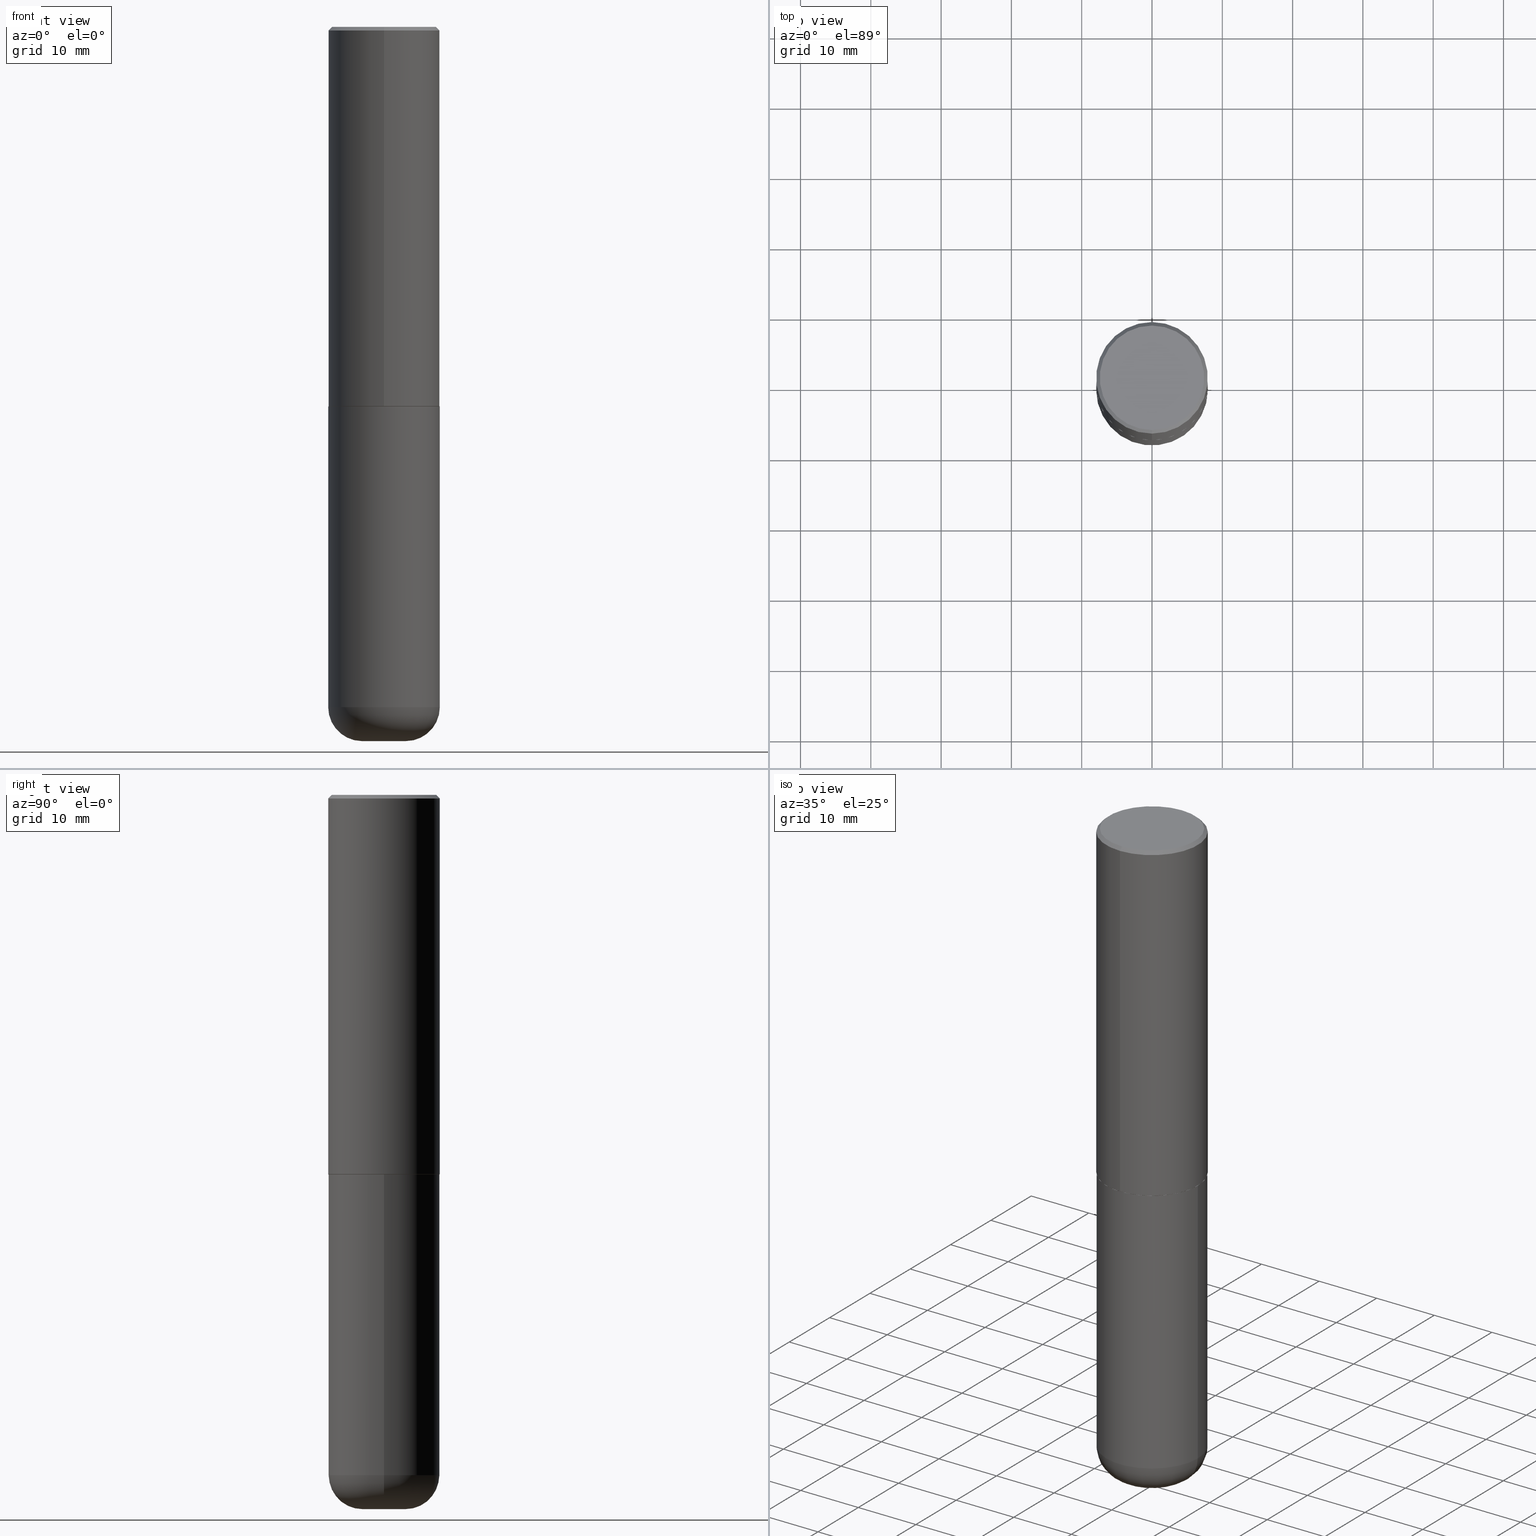
[diagram: canonical four-view strip — front | top / right | iso, engineering-drawing reading convention]
A machine part, canonical four-view strip (front | top / right | iso — engineering-drawing reading convention). The complete STEP part file that produces these views, byte-faithful:
ISO-10303-21;
HEADER;
FILE_DESCRIPTION (( 'STEP AP203' ),
    '1' );
FILE_NAME ('37624.STEP',
    '2024-03-02T06:19:45',
    ( '' ),
    ( '' ),
    'SwSTEP 2.0',
    'SolidWorks 2023',
    '' );
FILE_SCHEMA (( 'CONFIG_CONTROL_DESIGN' ));
ENDSEC;

DATA;
#1 = LINE ( 'NONE', #327, #83 ) ;
#2 = EDGE_CURVE ( 'NONE', #383, #173, #401, .T. ) ;
#3 = CARTESIAN_POINT ( 'NONE',  ( 5.192866564986985411E-29, -7.417781183046251262E-15, -2.123999999999999666 ) ) ;
#4 = AXIS2_PLACEMENT_3D ( 'NONE', #358, #258, #253 ) ;
#5 = EDGE_CURVE ( 'NONE', #287, #154, #342, .T. ) ;
#6 = DIRECTION ( 'NONE',  ( -1.000000000000000000, 6.982962677686265922E-15, -4.876176775795935793E-29 ) ) ;
#7 = PERSON_AND_ORGANIZATION ( #264, #325 ) ;
#8 = APPROVAL ( #201, 'UNSPECIFIED' ) ;
#9 = DIRECTION ( 'NONE',  ( -6.982962677686265133E-15, -1.000000000000000000, 3.492364022149836358E-15 ) ) ;
#10 = DIRECTION ( 'NONE',  ( 0.000000000000000000, 0.000000000000000000, 1.000000000000000000 ) ) ;
#11 = DIRECTION ( 'NONE',  ( 1.000000000000000000, -6.982962677686263555E-15, 0.000000000000000000 ) ) ;
#12 = AXIS2_PLACEMENT_3D ( 'NONE', #131, #261, #390 ) ;
#13 = CIRCLE ( 'NONE', #105, 0.3125000000000000000 ) ;
#14 = EDGE_CURVE ( 'NONE', #195, #68, #1, .T. ) ;
#15 = ORIENTED_EDGE ( 'NONE', *, *, #380, .F. ) ;
#16 = CALENDAR_DATE ( 2024, 2, 3 ) ;
#17 = ORIENTED_EDGE ( 'NONE', *, *, #112, .F. ) ;
#18 = ORIENTED_EDGE ( 'NONE', *, *, #225, .F. ) ;
#19 = COORDINATED_UNIVERSAL_TIME_OFFSET ( 5, 0, .BEHIND. ) ;
#20 = CARTESIAN_POINT ( 'NONE',  ( -2.143905624303602824E-15, -0.3125000000000000555, -0.01999999999999897693 ) ) ;
#21 = DATE_AND_TIME ( #16, #402 ) ;
#22 = DIRECTION ( 'NONE',  ( 2.444852431726452894E-29, -3.492364022149836358E-15, -1.000000000000000000 ) ) ;
#23 = DIRECTION ( 'NONE',  ( -2.444852431726452333E-29, 3.492364022149836358E-15, 1.000000000000000000 ) ) ;
#24 = ORIENTED_EDGE ( 'NONE', *, *, #168, .F. ) ;
#25 = DESIGN_CONTEXT ( 'detailed design', #318, 'design' ) ;
#26 = DIRECTION ( 'NONE',  ( 2.438088387897960049E-29, -3.491481338843145188E-15, -1.000000000000000000 ) ) ;
#27 = DIRECTION ( 'NONE',  ( -2.445468806185136597E-29, 3.491481338843145583E-15, 1.000000000000000000 ) ) ;
#28 = CIRCLE ( 'NONE', #12, 0.2924999999999999822 ) ;
#29 = VERTEX_POINT ( 'NONE', #70 ) ;
#30 = DIRECTION ( 'NONE',  ( 1.000000000000000000, -6.982962677686269077E-15, 0.000000000000000000 ) ) ;
#31 = CC_DESIGN_PERSON_AND_ORGANIZATION_ASSIGNMENT ( #136, #71, ( #177 ) ) ;
#32 = ORIENTED_EDGE ( 'NONE', *, *, #380, .T. ) ;
#33 = ORIENTED_EDGE ( 'NONE', *, *, #302, .F. ) ;
#34 = ORIENTED_EDGE ( 'NONE', *, *, #2, .T. ) ;
#35 = CLOSED_SHELL ( 'NONE', ( #240, #221, #330, #306, #246, #194, #184, #400 ) ) ;
#36 = VECTOR ( 'NONE', #90, 39.37007874015748143 ) ;
#37 = APPLICATION_CONTEXT ( 'configuration controlled 3d designs of mechanical parts and assemblies' ) ;
#38 = DIRECTION ( 'NONE',  ( -6.982962677686265922E-15, -1.000000000000000000, 3.507991003100177457E-15 ) ) ;
#39 = FACE_OUTER_BOUND ( 'NONE', #64, .T. ) ;
#40 = SECURITY_CLASSIFICATION_LEVEL ( 'unclassified' ) ;
#41 = CIRCLE ( 'NONE', #275, 0.3125000000000000000 ) ;
#42 = LOCAL_TIME ( 1, 19, 45.00000000000000000, #140 ) ;
#43 = DATE_AND_TIME ( #207, #234 ) ;
#44 = DIRECTION ( 'NONE',  ( 4.937700262164541731E-15, 0.7071067811865442421, -0.7071067811865507924 ) ) ;
#45 = FACE_OUTER_BOUND ( 'NONE', #223, .T. ) ;
#46 = PERSON_AND_ORGANIZATION ( #264, #325 ) ;
#47 = VECTOR ( 'NONE', #158, 39.37007874015748143 ) ;
#48 = PLANE ( 'NONE',  #353 ) ;
#49 = EDGE_LOOP ( 'NONE', ( #294, #110 ) ) ;
#50 = DATE_TIME_ROLE ( 'classification_date' ) ;
#51 = DIRECTION ( 'NONE',  ( 6.982962677686265133E-15, 1.000000000000000000, -3.496765431890256920E-15 ) ) ;
#52 = VECTOR ( 'NONE', #146, 39.37007874015748143 ) ;
#53 = CONICAL_SURFACE ( 'NONE', #244, 0.3125000000000000000, 0.7853981633974471688 ) ;
#54 = ORIENTED_EDGE ( 'NONE', *, *, #348, .F. ) ;
#55 = PERSON_AND_ORGANIZATION ( #264, #325 ) ;
#56 = CARTESIAN_POINT ( 'NONE',  ( 4.889704863452922148E-31, -6.984728044299695791E-17, -0.02000000000000006981 ) ) ;
#57 = PLANE ( 'NONE',  #303 ) ;
#58 = DIRECTION ( 'NONE',  ( -2.445468806185136597E-29, 3.491481338843145583E-15, 1.000000000000000000 ) ) ;
#59 = APPROVAL_DATE_TIME ( #150, #87 ) ;
#60 = EDGE_CURVE ( 'NONE', #394, #68, #362, .T. ) ;
#61 = DIRECTION ( 'NONE',  ( 1.000000000000000000, -6.982962677686266711E-15, 4.876176775795936353E-29 ) ) ;
#62 = AXIS2_PLACEMENT_3D ( 'NONE', #3, #285, #408 ) ;
#63 = CIRCLE ( 'NONE', #128, 0.3125000000000000000 ) ;
#64 = EDGE_LOOP ( 'NONE', ( #65, #274, #15, #247 ) ) ;
#65 = ORIENTED_EDGE ( 'NONE', *, *, #134, .T. ) ;
#66 = DIRECTION ( 'NONE',  ( -6.982962677686265133E-15, -1.000000000000000000, 3.496765431890256920E-15 ) ) ;
#67 = EDGE_CURVE ( 'NONE', #29, #96, #266, .T. ) ;
#68 = VERTEX_POINT ( 'NONE', #20 ) ;
#69 = CARTESIAN_POINT ( 'NONE',  ( 2.220446049250340297E-15, 0.3124999999999928391, -2.124000000000000554 ) ) ;
#70 = CARTESIAN_POINT ( 'NONE',  ( 0.1225000000000000394, -1.482133828338914748E-14, -3.999999999999999556 ) ) ;
#71 = PERSON_AND_ORGANIZATION_ROLE ( 'design_owner' ) ;
#72 = DIRECTION ( 'NONE',  ( -2.444852431726452894E-29, 3.492364022149836358E-15, 1.000000000000000000 ) ) ;
#73 = DIRECTION ( 'NONE',  ( -2.445468806185136597E-29, 3.491481338843145583E-15, 1.000000000000000000 ) ) ;
#74 = EDGE_LOOP ( 'NONE', ( #257, #210, #307, #54 ) ) ;
#75 = PERSON_AND_ORGANIZATION ( #264, #325 ) ;
#76 = AXIS2_PLACEMENT_3D ( 'NONE', #230, #345, #163 ) ;
#77 = CALENDAR_DATE ( 2024, 2, 3 ) ;
#78 = DIRECTION ( 'NONE',  ( -6.982962677686265922E-15, -1.000000000000000000, 3.507991003100177457E-15 ) ) ;
#79 = ORIENTED_EDGE ( 'NONE', *, *, #14, .T. ) ;
#80 = ADVANCED_FACE ( 'NONE', ( #316 ), #295, .T. ) ;
#81 = ORIENTED_EDGE ( 'NONE', *, *, #102, .F. ) ;
#82 = CARTESIAN_POINT ( 'NONE',  ( 0.3125000000000000000, -9.601573681818640393E-15, -2.124999999999999556 ) ) ;
#83 = VECTOR ( 'NONE', #149, 39.37007874015748143 ) ;
#84 = EDGE_CURVE ( 'NONE', #195, #404, #256, .T. ) ;
#85 = MANIFOLD_SOLID_BREP ( 'Body-Move/Copy2[1]', #333 ) ;
#86 = ORIENTED_EDGE ( 'NONE', *, *, #2, .F. ) ;
#87 = APPROVAL ( #179, 'UNSPECIFIED' ) ;
#88 = AXIS2_PLACEMENT_3D ( 'NONE', #217, #319, #187 ) ;
#89 = LINE ( 'NONE', #181, #47 ) ;
#90 = DIRECTION ( 'NONE',  ( -4.937700262165053702E-15, -0.7071067811866175168, 0.7071067811864775177 ) ) ;
#91 = CARTESIAN_POINT ( 'NONE',  ( -0.1225000000000000394, -1.208880417790426594E-14, -3.999999999999999556 ) ) ;
#92 = ORIENTED_EDGE ( 'NONE', *, *, #152, .F. ) ;
#93 = DIRECTION ( 'NONE',  ( 7.105427357601001859E-15, 1.000000000000000000, -3.491481338843145583E-15 ) ) ;
#94 = CIRCLE ( 'NONE', #418, 0.3114999999999999991 ) ;
#95 =( GEOMETRIC_REPRESENTATION_CONTEXT ( 3 ) GLOBAL_UNCERTAINTY_ASSIGNED_CONTEXT ( ( #241 ) ) GLOBAL_UNIT_ASSIGNED_CONTEXT ( ( #321, #126, #160 ) ) REPRESENTATION_CONTEXT ( 'NONE', 'WORKASPACE' ) );
#96 = VERTEX_POINT ( 'NONE', #91 ) ;
#97 = CARTESIAN_POINT ( 'NONE',  ( 2.042516583223232540E-15, 0.2924999999999999822, -1.017118871555123169E-15 ) ) ;
#98 = CARTESIAN_POINT ( 'NONE',  ( -0.3124999999999998890, -1.108209785174207265E-14, -3.810000000000000053 ) ) ;
#99 = DIRECTION ( 'NONE',  ( -2.444852431726452894E-29, 3.492364022149836358E-15, 1.000000000000000000 ) ) ;
#100 = CIRCLE ( 'NONE', #297, 0.1225000000000000394 ) ;
#101 = FACE_OUTER_BOUND ( 'NONE', #162, .T. ) ;
#102 = EDGE_CURVE ( 'NONE', #383, #154, #405, .T. ) ;
#103 = CARTESIAN_POINT ( 'NONE',  ( 5.195311417418712329E-29, -7.421273547068401324E-15, -2.124999999999999556 ) ) ;
#104 = DIRECTION ( 'NONE',  ( 2.438088387897960049E-29, -3.491481338843145188E-15, -1.000000000000000000 ) ) ;
#105 = AXIS2_PLACEMENT_3D ( 'NONE', #289, #288, #415 ) ;
#106 = CARTESIAN_POINT ( 'NONE',  ( 0.000000000000000000, 0.000000000000000000, 0.000000000000000000 ) ) ;
#107 = EDGE_CURVE ( 'NONE', #96, #383, #233, .T. ) ;
#108 = COORDINATED_UNIVERSAL_TIME_OFFSET ( 5, 0, .BEHIND. ) ;
#109 = CARTESIAN_POINT ( 'NONE',  ( 0.000000000000000000, 0.000000000000000000, 0.000000000000000000 ) ) ;
#110 = ORIENTED_EDGE ( 'NONE', *, *, #84, .T. ) ;
#111 = AXIS2_PLACEMENT_3D ( 'NONE', #236, #369, #78 ) ;
#112 = EDGE_CURVE ( 'NONE', #411, #394, #171, .T. ) ;
#113 = PRODUCT_DEFINITION_FORMATION_WITH_SPECIFIED_SOURCE ( 'ANY', '', #177, .NOT_KNOWN. ) ;
#114 = COORDINATED_UNIVERSAL_TIME_OFFSET ( 5, 0, .BEHIND. ) ;
#115 = FACE_OUTER_BOUND ( 'NONE', #403, .T. ) ;
#116 = ORIENTED_EDGE ( 'NONE', *, *, #107, .F. ) ;
#117 = CYLINDRICAL_SURFACE ( 'NONE', #309, 0.3125000000000000000 ) ;
#118 = ORIENTED_EDGE ( 'NONE', *, *, #290, .T. ) ;
#119 = DIRECTION ( 'NONE',  ( 2.444852431726452894E-29, -3.492364022149836358E-15, -1.000000000000000000 ) ) ;
#120 = VECTOR ( 'NONE', #44, 39.37007874015748143 ) ;
#121 = DIRECTION ( 'NONE',  ( -2.445468806185136597E-29, 3.491481338843145583E-15, 1.000000000000000000 ) ) ;
#122 = ADVANCED_FACE ( 'NONE', ( #413 ), #117, .T. ) ;
#123 = ORIENTED_EDGE ( 'NONE', *, *, #112, .T. ) ;
#124 = DIRECTION ( 'NONE',  ( -2.445468806185136877E-29, 3.491481338843145188E-15, 1.000000000000000000 ) ) ;
#125 = EDGE_LOOP ( 'NONE', ( #278, #382, #196, #33 ) ) ;
#126 =( NAMED_UNIT ( * ) PLANE_ANGLE_UNIT ( ) SI_UNIT ( $, .RADIAN. ) );
#127 = AXIS2_PLACEMENT_3D ( 'NONE', #129, #99, #219 ) ;
#128 = AXIS2_PLACEMENT_3D ( 'NONE', #161, #292, #66 ) ;
#129 = CARTESIAN_POINT ( 'NONE',  ( 5.192866564986985411E-29, -7.417781183046251262E-15, -2.123999999999999666 ) ) ;
#130 = APPROVAL_ROLE ( '' ) ;
#131 = CARTESIAN_POINT ( 'NONE',  ( -2.150299018297948745E-46, 3.071607443834507134E-32, 8.795209847407834549E-18 ) ) ;
#132 = TOROIDAL_SURFACE ( 'NONE', #180, 0.1225000000000000255, 0.1899999999999996692 ) ;
#133 = CONICAL_SURFACE ( 'NONE', #190, 0.3114999999999999991, 0.7853981633975507526 ) ;
#134 = EDGE_CURVE ( 'NONE', #394, #411, #242, .T. ) ;
#135 = DIRECTION ( 'NONE',  ( -2.445468806185136597E-29, 3.491481338843145583E-15, 1.000000000000000000 ) ) ;
#136 = PERSON_AND_ORGANIZATION ( #264, #325 ) ;
#137 = DIRECTION ( 'NONE',  ( -6.982962677686265922E-15, -1.000000000000000000, 3.507991003100177457E-15 ) ) ;
#138 = EDGE_CURVE ( 'NONE', #173, #383, #141, .T. ) ;
#139 = PRODUCT_DEFINITION_SHAPE ( 'NONE', 'NONE',  #376 ) ;
#140 = COORDINATED_UNIVERSAL_TIME_OFFSET ( 5, 0, .BEHIND. ) ;
#141 = CIRCLE ( 'NONE', #379, 0.3125000000000000000 ) ;
#142 = PRODUCT_RELATED_PRODUCT_CATEGORY ( 'detail', '', ( #177 ) ) ;
#143 = CARTESIAN_POINT ( 'NONE',  ( 9.317236151565370389E-29, -1.330254390099238573E-14, -3.810000000000000053 ) ) ;
#144 = CARTESIAN_POINT ( 'NONE',  ( 5.195311417418712329E-29, -7.421273547068401324E-15, -2.124999999999999556 ) ) ;
#145 = CC_DESIGN_PERSON_AND_ORGANIZATION_ASSIGNMENT ( #202, #331, ( #113 ) ) ;
#146 = DIRECTION ( 'NONE',  ( -2.445468806185136877E-29, 3.491481338843145188E-15, 1.000000000000000000 ) ) ;
#147 = ORIENTED_EDGE ( 'NONE', *, *, #14, .F. ) ;
#148 = CALENDAR_DATE ( 2024, 2, 3 ) ;
#149 = DIRECTION ( 'NONE',  ( -4.851104656540957964E-15, -0.7071067811865491270, -0.7071067811865459074 ) ) ;
#150 = DATE_AND_TIME ( #148, #276 ) ;
#151 = LINE ( 'NONE', #250, #36 ) ;
#152 = EDGE_CURVE ( 'NONE', #414, #411, #89, .T. ) ;
#153 = DIRECTION ( 'NONE',  ( -6.982962677686265922E-15, -1.000000000000000000, 3.492364022149836358E-15 ) ) ;
#154 = VERTEX_POINT ( 'NONE', #293 ) ;
#155 = AXIS2_PLACEMENT_3D ( 'NONE', #332, #104, #6 ) ;
#156 = DIRECTION ( 'NONE',  ( -1.000000000000000000, 7.105427357600997914E-15, 0.000000000000000000 ) ) ;
#157 = DIRECTION ( 'NONE',  ( -6.982962677686266711E-15, -1.000000000000000000, 3.491481338843145583E-15 ) ) ;
#158 = DIRECTION ( 'NONE',  ( 5.024295867788576727E-15, 0.7071067811866224018, 0.7071067811864726327 ) ) ;
#159 = ORIENTED_EDGE ( 'NONE', *, *, #84, .F. ) ;
#160 =( NAMED_UNIT ( * ) SI_UNIT ( $, .STERADIAN. ) SOLID_ANGLE_UNIT ( ) );
#161 = CARTESIAN_POINT ( 'NONE',  ( 4.889704863452922148E-31, -6.984728044299695791E-17, -0.02000000000000006981 ) ) ;
#162 = EDGE_LOOP ( 'NONE', ( #417, #341 ) ) ;
#163 = DIRECTION ( 'NONE',  ( -6.982962677686265133E-15, -1.000000000000000000, 3.492364022149836753E-15 ) ) ;
#164 = EDGE_CURVE ( 'NONE', #186, #414, #385, .T. ) ;
#165 = DIRECTION ( 'NONE',  ( -2.444852431726452894E-29, 3.492364022149836358E-15, 1.000000000000000000 ) ) ;
#166 = APPROVAL_PERSON_ORGANIZATION ( #175, #87, #311 ) ;
#167 = APPROVAL_DATE_TIME ( #43, #298 ) ;
#168 = EDGE_CURVE ( 'NONE', #404, #195, #28, .T. ) ;
#169 = FACE_OUTER_BOUND ( 'NONE', #74, .T. ) ;
#170 = LINE ( 'NONE', #270, #373 ) ;
#171 = CIRCLE ( 'NONE', #62, 0.3125000000000002776 ) ;
#172 = CONICAL_SURFACE ( 'NONE', #291, 0.3125000000000000000, 0.7853981633974471688 ) ;
#173 = VERTEX_POINT ( 'NONE', #252 ) ;
#174 = LINE ( 'NONE', #308, #52 ) ;
#175 = PERSON_AND_ORGANIZATION ( #264, #325 ) ;
#176 = DIRECTION ( 'NONE',  ( -6.982962677686265133E-15, -1.000000000000000000, 3.496765431890256920E-15 ) ) ;
#177 = PRODUCT ( '37624', '37624', '', ( #231 ) ) ;
#178 = ORIENTED_EDGE ( 'NONE', *, *, #5, .T. ) ;
#179 = APPROVAL_STATUS ( 'not_yet_approved' ) ;
#180 = AXIS2_PLACEMENT_3D ( 'NONE', #143, #338, #305 ) ;
#181 = CARTESIAN_POINT ( 'NONE',  ( 2.213340621892763743E-15, 0.3114999999999925606, -2.125000000000000888 ) ) ;
#182 = ORIENTED_EDGE ( 'NONE', *, *, #361, .F. ) ;
#183 = DIRECTION ( 'NONE',  ( -2.444852431726452894E-29, 3.492364022149836358E-15, 1.000000000000000000 ) ) ;
#184 = ADVANCED_FACE ( 'NONE', ( #101 ), #57, .F. ) ;
#185 = CARTESIAN_POINT ( 'NONE',  ( -0.3125000000000000000, 2.220446049250313081E-15, -1.537167215704658232E-29 ) ) ;
#186 = VERTEX_POINT ( 'NONE', #282 ) ;
#187 = DIRECTION ( 'NONE',  ( 1.000000000000000000, -6.982962677686263555E-15, 0.000000000000000000 ) ) ;
#188 = ORIENTED_EDGE ( 'NONE', *, *, #361, .T. ) ;
#189 = DIRECTION ( 'NONE',  ( 1.000000000000000000, -6.982962677686261189E-15, 0.000000000000000000 ) ) ;
#190 = AXIS2_PLACEMENT_3D ( 'NONE', #103, #165, #137 ) ;
#191 = SECURITY_CLASSIFICATION ( '', '', #40 ) ;
#192 = CARTESIAN_POINT ( 'NONE',  ( 9.317236151565370389E-29, -1.330254390099238573E-14, -3.810000000000000053 ) ) ;
#193 = CIRCLE ( 'NONE', #412, 0.1899999999999997247 ) ;
#194 = ADVANCED_FACE ( 'NONE', ( #301 ), #133, .T. ) ;
#195 = VERTEX_POINT ( 'NONE', #203 ) ;
#196 = ORIENTED_EDGE ( 'NONE', *, *, #5, .F. ) ;
#197 = AXIS2_PLACEMENT_3D ( 'NONE', #248, #93, #156 ) ;
#198 = CARTESIAN_POINT ( 'NONE',  ( 2.216893335571564642E-15, 0.3114999999999925606, -2.125000000000000888 ) ) ;
#199 = EDGE_CURVE ( 'NONE', #96, #29, #100, .T. ) ;
#200 = DIRECTION ( 'NONE',  ( -2.444852431726452894E-29, 3.492364022149836358E-15, 1.000000000000000000 ) ) ;
#201 = APPROVAL_STATUS ( 'not_yet_approved' ) ;
#202 = PERSON_AND_ORGANIZATION ( #264, #325 ) ;
#203 = CARTESIAN_POINT ( 'NONE',  ( -2.075300644325887493E-15, -0.2924999999999999822, 1.030311686326234990E-15 ) ) ;
#204 = DIMENSIONAL_EXPONENTS ( 1.000000000000000000, 0.000000000000000000, 0.000000000000000000, 0.000000000000000000, 0.000000000000000000, 0.000000000000000000, 0.000000000000000000 ) ;
#205 = ADVANCED_FACE ( 'NONE', ( #300 ), #374, .T. ) ;
#206 = CC_DESIGN_APPROVAL ( #298, ( #376 ) ) ;
#207 = CALENDAR_DATE ( 2024, 2, 3 ) ;
#208 = CC_DESIGN_PERSON_AND_ORGANIZATION_ASSIGNMENT ( #46, #260, ( #113 ) ) ;
#209 = FACE_OUTER_BOUND ( 'NONE', #371, .T. ) ;
#210 = ORIENTED_EDGE ( 'NONE', *, *, #152, .T. ) ;
#211 = DIRECTION ( 'NONE',  ( -6.982962677686265133E-15, -1.000000000000000000, 3.492364022149836358E-15 ) ) ;
#212 = ORIENTED_EDGE ( 'NONE', *, *, #286, .F. ) ;
#213 = ADVANCED_FACE ( 'NONE', ( #391 ), #268, .F. ) ;
#214 = DIRECTION ( 'NONE',  ( -6.982962677686265922E-15, -1.000000000000000000, 3.507991003100177457E-15 ) ) ;
#215 = VERTEX_POINT ( 'NONE', #232 ) ;
#216 = APPROVAL_PERSON_ORGANIZATION ( #75, #298, #130 ) ;
#217 = CARTESIAN_POINT ( 'NONE',  ( 9.781875224740545266E-29, -1.396592535537258075E-14, -3.999999999999999556 ) ) ;
#218 = CARTESIAN_POINT ( 'NONE',  ( 9.317236151565370389E-29, -1.330254390099238573E-14, -3.810000000000000053 ) ) ;
#219 = DIRECTION ( 'NONE',  ( -6.982962677686265922E-15, -1.000000000000000000, 3.496765431890253764E-15 ) ) ;
#220 = LENGTH_MEASURE_WITH_UNIT ( LENGTH_MEASURE( 0.02539999999999999897 ), #384 );
#221 = ADVANCED_FACE ( 'NONE', ( #39 ), #365, .T. ) ;
#222 = ORIENTED_EDGE ( 'NONE', *, *, #348, .T. ) ;
#223 = EDGE_LOOP ( 'NONE', ( #320, #399, #310, #182 ) ) ;
#224 = DIRECTION ( 'NONE',  ( 2.444852431726452333E-29, -3.492364022149836358E-15, -1.000000000000000000 ) ) ;
#225 = EDGE_CURVE ( 'NONE', #404, #215, #238, .T. ) ;
#226 = CARTESIAN_POINT ( 'NONE',  ( -2.182175836776908254E-15, -0.3125000000000077161, -2.123999999999998334 ) ) ;
#227 = DIRECTION ( 'NONE',  ( 1.000000000000000000, -6.982962677686266711E-15, 4.876176775795936353E-29 ) ) ;
#228 = VECTOR ( 'NONE', #124, 39.37007874015748143 ) ;
#229 = CC_DESIGN_APPROVAL ( #8, ( #113 ) ) ;
#230 = CARTESIAN_POINT ( 'NONE',  ( -2.150299018297948745E-46, 3.071607443834507134E-32, 8.795209847407834549E-18 ) ) ;
#231 = MECHANICAL_CONTEXT ( 'NONE', #37, 'mechanical' ) ;
#232 = CARTESIAN_POINT ( 'NONE',  ( 2.182175836776958741E-15, 0.3124999999999999445, -0.02000000000000116268 ) ) ;
#233 = CIRCLE ( 'NONE', #197, 0.1899999999999997247 ) ;
#234 = LOCAL_TIME ( 1, 19, 45.00000000000000000, #363 ) ;
#235 = PERSON_AND_ORGANIZATION_ROLE ( 'creator' ) ;
#236 = CARTESIAN_POINT ( 'NONE',  ( 5.195311417418712329E-29, -7.421273547068401324E-15, -2.124999999999999556 ) ) ;
#237 = CALENDAR_DATE ( 2024, 2, 3 ) ;
#238 = LINE ( 'NONE', #334, #120 ) ;
#239 = EDGE_LOOP ( 'NONE', ( #92, #118, #222, #17 ) ) ;
#240 = ADVANCED_FACE ( 'NONE', ( #169 ), #262, .T. ) ;
#241 = UNCERTAINTY_MEASURE_WITH_UNIT (LENGTH_MEASURE( 1.000000000000000082E-05 ), #321, 'distance_accuracy_value', 'NONE');
#242 = CIRCLE ( 'NONE', #127, 0.3125000000000002776 ) ;
#243 = EDGE_LOOP ( 'NONE', ( #279, #323 ) ) ;
#244 = AXIS2_PLACEMENT_3D ( 'NONE', #245, #119, #51 ) ;
#245 = CARTESIAN_POINT ( 'NONE',  ( 4.889704863452922148E-31, -6.984728044299695791E-17, -0.02000000000000006981 ) ) ;
#246 = ADVANCED_FACE ( 'NONE', ( #209 ), #396, .T. ) ;
#247 = ORIENTED_EDGE ( 'NONE', *, *, #60, .F. ) ;
#248 = CARTESIAN_POINT ( 'NONE',  ( -0.1225000000000000255, -1.243212904968626105E-14, -3.810000000000000053 ) ) ;
#249 = EDGE_LOOP ( 'NONE', ( #81, #34, #377, #346 ) ) ;
#250 = CARTESIAN_POINT ( 'NONE',  ( -2.175192874099219874E-15, -0.3115000000000074376, -2.124999999999998668 ) ) ;
#251 = VECTOR ( 'NONE', #381, 39.37007874015748143 ) ;
#252 = CARTESIAN_POINT ( 'NONE',  ( 0.3124999999999998890, -1.548471973776934408E-14, -3.810000000000000053 ) ) ;
#253 = DIRECTION ( 'NONE',  ( 1.000000000000000000, -6.982962677686265133E-15, 0.000000000000000000 ) ) ;
#254 = CARTESIAN_POINT ( 'NONE',  ( 2.112346210000095838E-15, 0.2924999999999999822, -1.012721266631419361E-15 ) ) ;
#255 = ADVANCED_FACE ( 'NONE', ( #45 ), #132, .T. ) ;
#256 = CIRCLE ( 'NONE', #76, 0.2924999999999999822 ) ;
#257 = ORIENTED_EDGE ( 'NONE', *, *, #164, .T. ) ;
#258 = DIRECTION ( 'NONE',  ( -2.445468806185136597E-29, 3.491481338843145583E-15, 1.000000000000000000 ) ) ;
#259 = CC_DESIGN_DATE_AND_TIME_ASSIGNMENT ( #335, #267, ( #376 ) ) ;
#260 = PERSON_AND_ORGANIZATION_ROLE ( 'creator' ) ;
#261 = DIRECTION ( 'NONE',  ( -2.444852431726452894E-29, 3.492364022149836358E-15, 1.000000000000000000 ) ) ;
#262 = CONICAL_SURFACE ( 'NONE', #111, 0.3114999999999999991, 0.7853981633975507526 ) ;
#263 = EDGE_CURVE ( 'NONE', #411, #215, #170, .T. ) ;
#264 = PERSON ( 'UNSPECIFIED', 'UNSPECIFIED', 'UNSPECIFIED', ('UNSPECIFIED'), ('UNSPECIFIED'), ('UNSPECIFIED') ) ;
#265 = CARTESIAN_POINT ( 'NONE',  ( 9.781875224740545266E-29, -1.396592535537258075E-14, -3.999999999999999556 ) ) ;
#266 = CIRCLE ( 'NONE', #88, 0.1225000000000000394 ) ;
#267 = DATE_TIME_ROLE ( 'creation_date' ) ;
#268 = PLANE ( 'NONE',  #155 ) ;
#269 = ADVANCED_FACE ( 'NONE', ( #272 ), #48, .T. ) ;
#270 = CARTESIAN_POINT ( 'NONE',  ( 2.220446049250313475E-15, 0.3125000000000001665, -1.091363756921824478E-15 ) ) ;
#271 = EDGE_LOOP ( 'NONE', ( #147, #24, #406, #416 ) ) ;
#272 = FACE_OUTER_BOUND ( 'NONE', #243, .T. ) ;
#273 = ADVANCED_BREP_SHAPE_REPRESENTATION ( '37624', ( #85, #368, #386 ), #95 ) ;
#274 = ORIENTED_EDGE ( 'NONE', *, *, #263, .T. ) ;
#275 = AXIS2_PLACEMENT_3D ( 'NONE', #56, #183, #176 ) ;
#276 = LOCAL_TIME ( 1, 19, 45.00000000000000000, #19 ) ;
#277 = DIRECTION ( 'NONE',  ( -2.444852431726452894E-29, 3.492364022149836358E-15, 1.000000000000000000 ) ) ;
#278 = ORIENTED_EDGE ( 'NONE', *, *, #138, .T. ) ;
#279 = ORIENTED_EDGE ( 'NONE', *, *, #67, .F. ) ;
#280 = CC_DESIGN_PERSON_AND_ORGANIZATION_ASSIGNMENT ( #7, #235, ( #376 ) ) ;
#281 = CARTESIAN_POINT ( 'NONE',  ( 0.000000000000000000, 0.000000000000000000, 0.000000000000000000 ) ) ;
#282 = CARTESIAN_POINT ( 'NONE',  ( -2.175192874099219874E-15, -0.3115000000000074376, -2.124999999999998668 ) ) ;
#283 = SHAPE_DEFINITION_REPRESENTATION ( #139, #273 ) ;
#284 = AXIS2_PLACEMENT_3D ( 'NONE', #192, #58, #349 ) ;
#285 = DIRECTION ( 'NONE',  ( -2.444852431726452894E-29, 3.492364022149836358E-15, 1.000000000000000000 ) ) ;
#286 = EDGE_CURVE ( 'NONE', #215, #68, #41, .T. ) ;
#287 = VERTEX_POINT ( 'NONE', #82 ) ;
#288 = DIRECTION ( 'NONE',  ( -2.445468806185136597E-29, 3.491481338843145583E-15, 1.000000000000000000 ) ) ;
#289 = CARTESIAN_POINT ( 'NONE',  ( 5.196621213143414147E-29, -7.419397845041682046E-15, -2.124999999999999556 ) ) ;
#290 = EDGE_CURVE ( 'NONE', #414, #186, #94, .T. ) ;
#291 = AXIS2_PLACEMENT_3D ( 'NONE', #347, #22, #407 ) ;
#292 = DIRECTION ( 'NONE',  ( -2.444852431726452894E-29, 3.492364022149836358E-15, 1.000000000000000000 ) ) ;
#293 = CARTESIAN_POINT ( 'NONE',  ( -0.3125000000000000000, -8.140524823766720019E-15, -2.124999999999999556 ) ) ;
#294 = ORIENTED_EDGE ( 'NONE', *, *, #168, .T. ) ;
#295 = CYLINDRICAL_SURFACE ( 'NONE', #324, 0.3125000000000000000 ) ;
#296 = DIRECTION ( 'NONE',  ( 1.000000000000000000, -6.982962677686269077E-15, 4.883557194083113462E-29 ) ) ;
#297 = AXIS2_PLACEMENT_3D ( 'NONE', #265, #135, #11 ) ;
#298 = APPROVAL ( #392, 'UNSPECIFIED' ) ;
#299 = CARTESIAN_POINT ( 'NONE',  ( 0.000000000000000000, 0.000000000000000000, 0.000000000000000000 ) ) ;
#300 = FACE_OUTER_BOUND ( 'NONE', #326, .T. ) ;
#301 = FACE_OUTER_BOUND ( 'NONE', #239, .T. ) ;
#302 = EDGE_CURVE ( 'NONE', #173, #287, #174, .T. ) ;
#303 = AXIS2_PLACEMENT_3D ( 'NONE', #315, #23, #153 ) ;
#304 = CC_DESIGN_SECURITY_CLASSIFICATION ( #191, ( #113 ) ) ;
#305 = DIRECTION ( 'NONE',  ( 1.000000000000000000, -6.982962677686269077E-15, 4.883557194083113462E-29 ) ) ;
#306 = ADVANCED_FACE ( 'NONE', ( #314 ), #172, .T. ) ;
#307 = ORIENTED_EDGE ( 'NONE', *, *, #134, .F. ) ;
#308 = CARTESIAN_POINT ( 'NONE',  ( 0.3125000000000000000, -2.182175836776958347E-15, 1.523805242436230075E-29 ) ) ;
#309 = AXIS2_PLACEMENT_3D ( 'NONE', #378, #387, #61 ) ;
#310 = ORIENTED_EDGE ( 'NONE', *, *, #138, .F. ) ;
#311 = APPROVAL_ROLE ( '' ) ;
#312 = CARTESIAN_POINT ( 'NONE',  ( 5.195311417418712329E-29, -7.421273547068401324E-15, -2.124999999999999556 ) ) ;
#313 = ORIENTED_EDGE ( 'NONE', *, *, #263, .F. ) ;
#314 = FACE_OUTER_BOUND ( 'NONE', #271, .T. ) ;
#315 = CARTESIAN_POINT ( 'NONE',  ( 5.195311417418712329E-29, -7.421273547068401324E-15, -2.124999999999999556 ) ) ;
#316 = FACE_OUTER_BOUND ( 'NONE', #249, .T. ) ;
#317 = ORIENTED_EDGE ( 'NONE', *, *, #367, .T. ) ;
#318 = APPLICATION_CONTEXT ( 'configuration controlled 3d designs of mechanical parts and assemblies' ) ;
#319 = DIRECTION ( 'NONE',  ( -2.445468806185136597E-29, 3.491481338843145583E-15, 1.000000000000000000 ) ) ;
#320 = ORIENTED_EDGE ( 'NONE', *, *, #67, .T. ) ;
#321 =( CONVERSION_BASED_UNIT ( 'INCH', #220 ) LENGTH_UNIT ( ) NAMED_UNIT ( #204 ) );
#322 = PLANE ( 'NONE',  #375 ) ;
#323 = ORIENTED_EDGE ( 'NONE', *, *, #199, .F. ) ;
#324 = AXIS2_PLACEMENT_3D ( 'NONE', #281, #27, #227 ) ;
#325 = ORGANIZATION ( 'UNSPECIFIED', 'UNSPECIFIED', '' ) ;
#326 = EDGE_LOOP ( 'NONE', ( #116, #343, #188, #86 ) ) ;
#327 = CARTESIAN_POINT ( 'NONE',  ( -2.143905624303602824E-15, -0.3125000000000000555, -0.01999999999999897693 ) ) ;
#328 = APPROVAL_ROLE ( '' ) ;
#329 = CARTESIAN_POINT ( 'NONE',  ( 9.317236151565370389E-29, -1.330254390099238573E-14, -3.810000000000000053 ) ) ;
#330 = ADVANCED_FACE ( 'NONE', ( #115 ), #53, .T. ) ;
#331 = PERSON_AND_ORGANIZATION_ROLE ( 'design_supplier' ) ;
#332 = CARTESIAN_POINT ( 'NONE',  ( 5.196621213143414147E-29, -7.419397845041682046E-15, -2.124999999999999556 ) ) ;
#333 = CLOSED_SHELL ( 'NONE', ( #122, #255, #213, #80, #205, #269 ) ) ;
#334 = CARTESIAN_POINT ( 'NONE',  ( 2.182175836776958741E-15, 0.3124999999999999445, -0.02000000000000116268 ) ) ;
#335 = DATE_AND_TIME ( #77, #42 ) ;
#336 = DIRECTION ( 'NONE',  ( -2.444852431726452894E-29, 3.492364022149836358E-15, 1.000000000000000000 ) ) ;
#337 = APPROVAL_DATE_TIME ( #370, #8 ) ;
#338 = DIRECTION ( 'NONE',  ( -2.445468806185136597E-29, 3.491481338843145583E-15, 1.000000000000000000 ) ) ;
#339 = AXIS2_PLACEMENT_3D ( 'NONE', #329, #73, #296 ) ;
#340 = CC_DESIGN_APPROVAL ( #87, ( #191 ) ) ;
#341 = ORIENTED_EDGE ( 'NONE', *, *, #290, .F. ) ;
#342 = CIRCLE ( 'NONE', #4, 0.3125000000000000000 ) ;
#343 = ORIENTED_EDGE ( 'NONE', *, *, #199, .T. ) ;
#344 = CARTESIAN_POINT ( 'NONE',  ( 2.223992752245134548E-28, 3.874714603251181520E-15, -4.000000000000000000 ) ) ;
#345 = DIRECTION ( 'NONE',  ( -2.444852431726452894E-29, 3.492364022149836358E-15, 1.000000000000000000 ) ) ;
#346 = ORIENTED_EDGE ( 'NONE', *, *, #367, .F. ) ;
#347 = CARTESIAN_POINT ( 'NONE',  ( 4.889704863452922148E-31, -6.984728044299695791E-17, -0.02000000000000006981 ) ) ;
#348 = EDGE_CURVE ( 'NONE', #186, #394, #151, .T. ) ;
#349 = DIRECTION ( 'NONE',  ( 1.000000000000000000, -6.982962677686269077E-15, 0.000000000000000000 ) ) ;
#350 = CARTESIAN_POINT ( 'NONE',  ( 0.1225000000000000255, -1.415795682900895246E-14, -3.810000000000000053 ) ) ;
#351 = CARTESIAN_POINT ( 'NONE',  ( -2.182175836776959136E-15, -0.3125000000000001665, 1.091363756921824478E-15 ) ) ;
#352 = ORIENTED_EDGE ( 'NONE', *, *, #60, .T. ) ;
#353 = AXIS2_PLACEMENT_3D ( 'NONE', #344, #26, #372 ) ;
#354 = DIRECTION ( 'NONE',  ( 6.982962677686265922E-15, 1.000000000000000000, -3.492364022149836358E-15 ) ) ;
#355 = APPROVAL_PERSON_ORGANIZATION ( #395, #8, #328 ) ;
#356 = EDGE_LOOP ( 'NONE', ( #178, #317 ) ) ;
#357 = FACE_OUTER_BOUND ( 'NONE', #49, .T. ) ;
#358 = CARTESIAN_POINT ( 'NONE',  ( 5.196621213143414147E-29, -7.419397845041682046E-15, -2.124999999999999556 ) ) ;
#359 = LOCAL_TIME ( 1, 19, 45.00000000000000000, #108 ) ;
#360 = DIRECTION ( 'NONE',  ( 1.000000000000000000, 0.000000000000000000, 0.000000000000000000 ) ) ;
#361 = EDGE_CURVE ( 'NONE', #29, #173, #193, .T. ) ;
#362 = LINE ( 'NONE', #351, #251 ) ;
#363 = COORDINATED_UNIVERSAL_TIME_OFFSET ( 5, 0, .BEHIND. ) ;
#364 = APPLICATION_PROTOCOL_DEFINITION ( 'international standard', 'config_control_design', 1994, #318 ) ;
#365 = CYLINDRICAL_SURFACE ( 'NONE', #389, 0.3125000000000001665 ) ;
#366 = AXIS2_PLACEMENT_3D ( 'NONE', #109, #336, #211 ) ;
#367 = EDGE_CURVE ( 'NONE', #154, #287, #13, .T. ) ;
#368 = MANIFOLD_SOLID_BREP ( 'Body-Move/Copy2[2]', #35 ) ;
#369 = DIRECTION ( 'NONE',  ( -2.444852431726452894E-29, 3.492364022149836358E-15, 1.000000000000000000 ) ) ;
#370 = DATE_AND_TIME ( #237, #359 ) ;
#371 = EDGE_LOOP ( 'NONE', ( #313, #123, #352, #212 ) ) ;
#372 = DIRECTION ( 'NONE',  ( -1.000000000000000000, 6.982962677686265922E-15, -4.876176775795935793E-29 ) ) ;
#373 = VECTOR ( 'NONE', #398, 39.37007874015748143 ) ;
#374 = TOROIDAL_SURFACE ( 'NONE', #339, 0.1225000000000000255, 0.1899999999999996692 ) ;
#375 = AXIS2_PLACEMENT_3D ( 'NONE', #97, #224, #354 ) ;
#376 = PRODUCT_DEFINITION ( 'UNKNOWN', '', #113, #25 ) ;
#377 = ORIENTED_EDGE ( 'NONE', *, *, #302, .T. ) ;
#378 = CARTESIAN_POINT ( 'NONE',  ( 0.000000000000000000, 0.000000000000000000, 0.000000000000000000 ) ) ;
#379 = AXIS2_PLACEMENT_3D ( 'NONE', #218, #121, #30 ) ;
#380 = EDGE_CURVE ( 'NONE', #68, #215, #63, .T. ) ;
#381 = DIRECTION ( 'NONE',  ( -2.444852431726452614E-29, 3.492364022149836358E-15, 1.000000000000000000 ) ) ;
#382 = ORIENTED_EDGE ( 'NONE', *, *, #102, .T. ) ;
#383 = VERTEX_POINT ( 'NONE', #98 ) ;
#384 =( LENGTH_UNIT ( ) NAMED_UNIT ( * ) SI_UNIT ( $, .METRE. ) );
#385 = CIRCLE ( 'NONE', #410, 0.3114999999999999991 ) ;
#386 = AXIS2_PLACEMENT_3D ( 'NONE', #299, #10, #360 ) ;
#387 = DIRECTION ( 'NONE',  ( -2.445468806185136597E-29, 3.491481338843145583E-15, 1.000000000000000000 ) ) ;
#388 = APPLICATION_PROTOCOL_DEFINITION ( 'international standard', 'config_control_design', 1994, #37 ) ;
#389 = AXIS2_PLACEMENT_3D ( 'NONE', #106, #72, #9 ) ;
#390 = DIRECTION ( 'NONE',  ( -6.982962677686265133E-15, -1.000000000000000000, 3.492364022149836753E-15 ) ) ;
#391 = FACE_OUTER_BOUND ( 'NONE', #356, .T. ) ;
#392 = APPROVAL_STATUS ( 'not_yet_approved' ) ;
#393 = CC_DESIGN_PERSON_AND_ORGANIZATION_ASSIGNMENT ( #55, #397, ( #191 ) ) ;
#394 = VERTEX_POINT ( 'NONE', #226 ) ;
#395 = PERSON_AND_ORGANIZATION ( #264, #325 ) ;
#396 = CYLINDRICAL_SURFACE ( 'NONE', #366, 0.3125000000000001665 ) ;
#397 = PERSON_AND_ORGANIZATION_ROLE ( 'classification_officer' ) ;
#398 = DIRECTION ( 'NONE',  ( -2.444852431726452614E-29, 3.492364022149836358E-15, 1.000000000000000000 ) ) ;
#399 = ORIENTED_EDGE ( 'NONE', *, *, #107, .T. ) ;
#400 = ADVANCED_FACE ( 'NONE', ( #357 ), #322, .F. ) ;
#401 = CIRCLE ( 'NONE', #284, 0.3125000000000000000 ) ;
#402 = LOCAL_TIME ( 1, 19, 45.00000000000000000, #114 ) ;
#403 = EDGE_LOOP ( 'NONE', ( #159, #79, #32, #18 ) ) ;
#404 = VERTEX_POINT ( 'NONE', #254 ) ;
#405 = LINE ( 'NONE', #185, #228 ) ;
#406 = ORIENTED_EDGE ( 'NONE', *, *, #225, .T. ) ;
#407 = DIRECTION ( 'NONE',  ( 6.982962677686265133E-15, 1.000000000000000000, -3.496765431890256920E-15 ) ) ;
#408 = DIRECTION ( 'NONE',  ( -6.982962677686265922E-15, -1.000000000000000000, 3.496765431890253764E-15 ) ) ;
#409 = CC_DESIGN_DATE_AND_TIME_ASSIGNMENT ( #21, #50, ( #191 ) ) ;
#410 = AXIS2_PLACEMENT_3D ( 'NONE', #312, #200, #38 ) ;
#411 = VERTEX_POINT ( 'NONE', #69 ) ;
#412 = AXIS2_PLACEMENT_3D ( 'NONE', #350, #157, #189 ) ;
#413 = FACE_OUTER_BOUND ( 'NONE', #125, .T. ) ;
#414 = VERTEX_POINT ( 'NONE', #198 ) ;
#415 = DIRECTION ( 'NONE',  ( 1.000000000000000000, -6.982962677686265133E-15, 0.000000000000000000 ) ) ;
#416 = ORIENTED_EDGE ( 'NONE', *, *, #286, .T. ) ;
#417 = ORIENTED_EDGE ( 'NONE', *, *, #164, .F. ) ;
#418 = AXIS2_PLACEMENT_3D ( 'NONE', #144, #277, #214 ) ;
ENDSEC;
END-ISO-10303-21;
